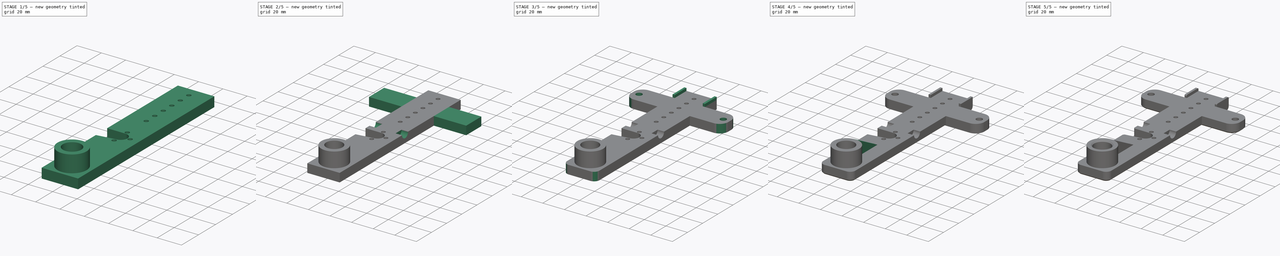
[diagram: build sequence overview — one tinted view per stage of 5, left to right]
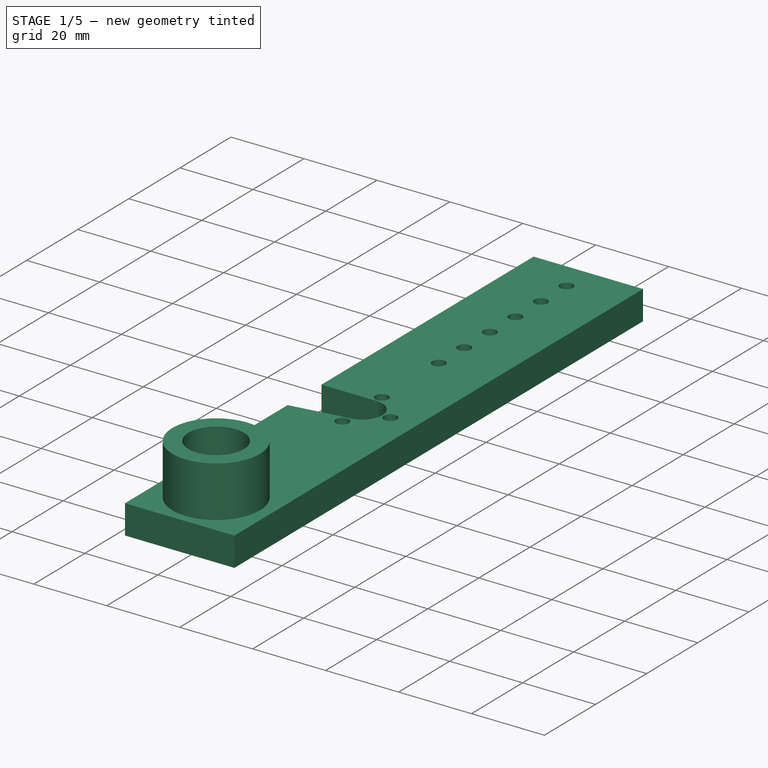
[diagram: stage 1 of 5 — iso view after this stage's code; geometry added in this stage tinted green]
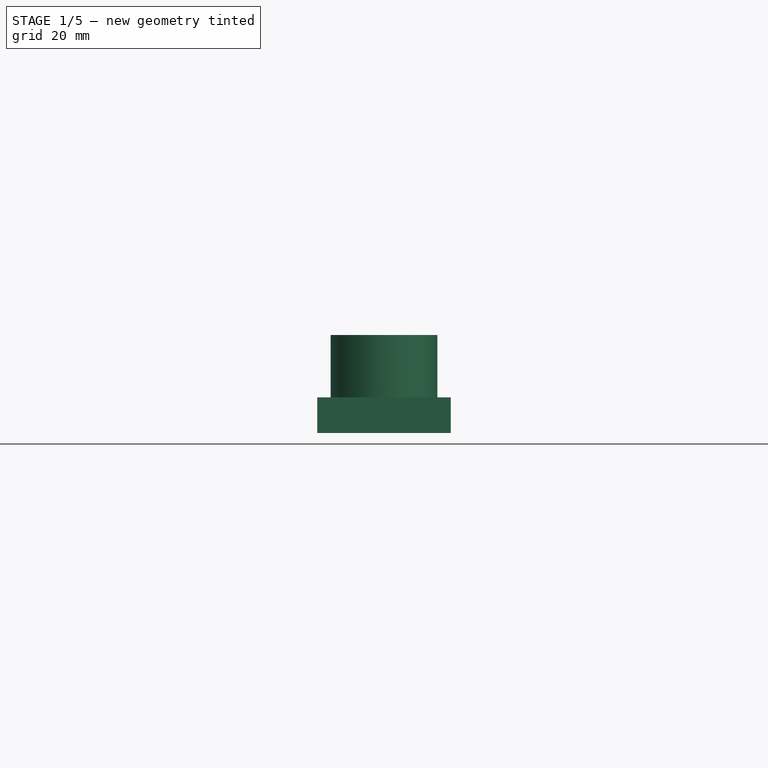
[diagram: stage 1 of 5 — front view after this stage's code; geometry added in this stage tinted green]
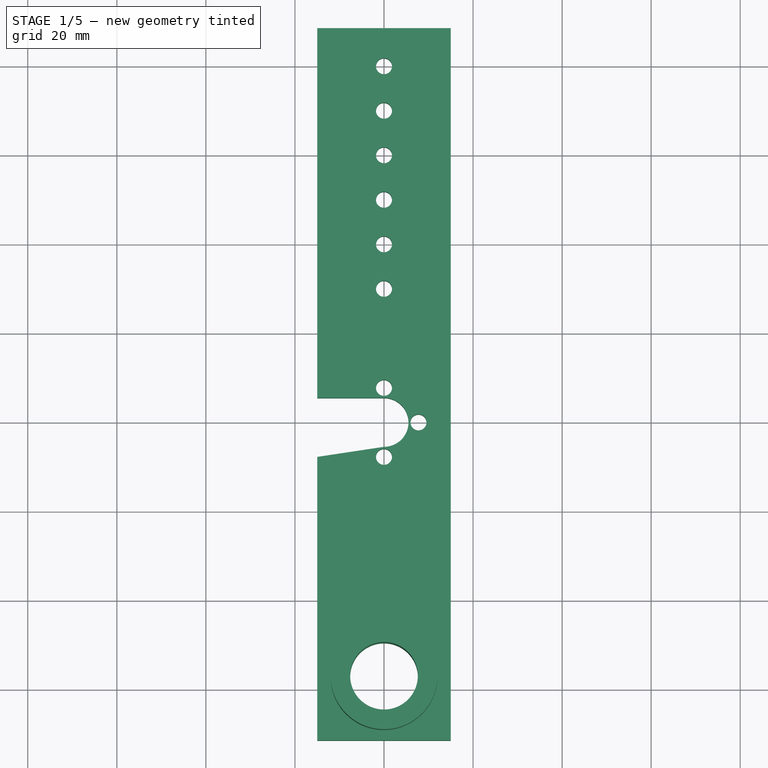
[diagram: stage 1 of 5 — top view after this stage's code; geometry added in this stage tinted green]
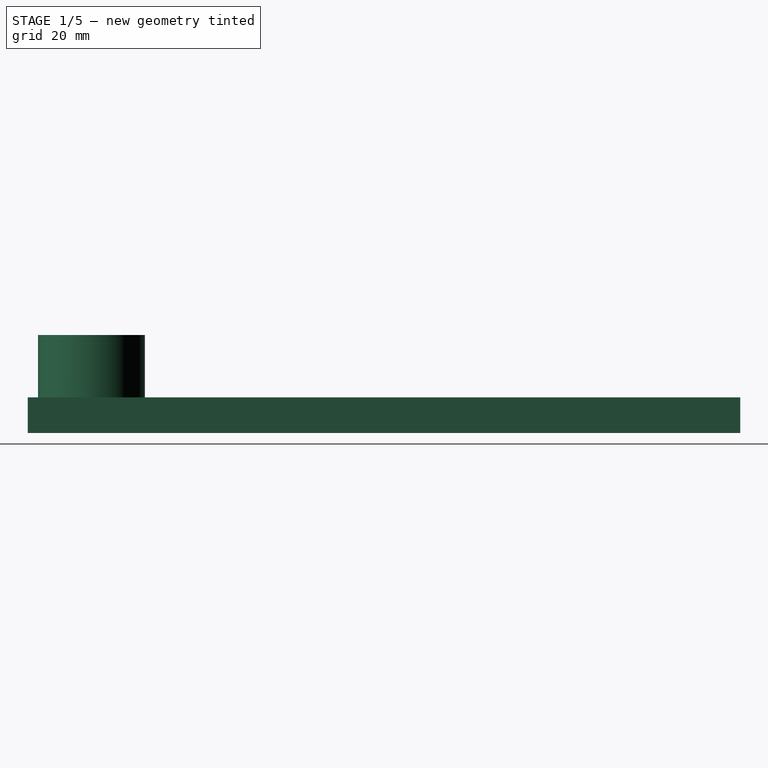
[diagram: stage 1 of 5 — right view after this stage's code; geometry added in this stage tinted green]
FCSTD DOCUMENT  (FreeCAD 0.16R6698 (Git))
Label: feeder
License: All rights reserved
LicenseURL: http://en.wikipedia.org/wiki/All_rights_reserved
objects: Sketcher::SketchObject×13, PartDesign::Pocket×7, PartDesign::Pad×6, PartDesign::Chamfer×5, PartDesign::Fillet×4
note: 48 computed .brp shape members not serialized (recipe doc carries the construction recipe); baked Part::Feature solids carry a one-line shape summary decoded from their .brp

FEATURE [Sketcher::SketchObject] Sketch
  sketch-geometry (4):
    g0: LineSegment StartX=-15 StartY=88.556 StartZ=0 EndX=15 EndY=88.556 EndZ=0
    g1: LineSegment StartX=15 StartY=88.556 StartZ=0 EndX=15 EndY=-71.444 EndZ=0
    g2: LineSegment StartX=15 StartY=-71.444 StartZ=0 EndX=-15 EndY=-71.444 EndZ=0
    g3: LineSegment StartX=-15 StartY=-71.444 StartZ=0 EndX=-15 EndY=88.556 EndZ=0
  constraints (11):
    c: Coincident(g0,g1)
    c: Coincident(g1,g2)
    c: Coincident(g2,g3)
    c: Coincident(g3,g0)
    c: Horizontal(g0)
    c: Horizontal(g2)
    c: Vertical(g1)
    c: Vertical(g3)
    c: DistanceX(g0,g0) = 30
    c: DistanceY(g3,g3) = 160
    c: Symmetric(g0,g0,g-2)
FEATURE [PartDesign::Pad] Pad
  Length = 8
  Length2 = 100
  Sketch = -> Sketch
  Type = 0
FEATURE [Sketcher::SketchObject] Sketch001
  Placement = pos=(0,0,8) rot=(0,0,1;0rad)
  Support = -> Pad [Face6]
  sketch-geometry (14):
    g0: ArcOfCircle CenterX=0 CenterY=0 CenterZ=0 NormalX=0 NormalY=0 NormalZ=1 Radius=5.5 StartAngle=4.71239 EndAngle=7.85398
    g1: Circle CenterX=0 CenterY=30 CenterZ=0 NormalX=0 NormalY=0 NormalZ=1 Radius=1.8
    g2: Circle CenterX=0 CenterY=40 CenterZ=0 NormalX=0 NormalY=0 NormalZ=1 Radius=1.8
    g3: Circle CenterX=0 CenterY=50 CenterZ=0 NormalX=0 NormalY=0 NormalZ=1 Radius=1.8
    g4: Circle CenterX=0 CenterY=60 CenterZ=0 NormalX=0 NormalY=0 NormalZ=1 Radius=1.8
    g5: Circle CenterX=0 CenterY=70 CenterZ=0 NormalX=0 NormalY=0 NormalZ=1 Radius=1.8
    g6: Circle CenterX=0 CenterY=7.75 CenterZ=0 NormalX=0 NormalY=0 NormalZ=1 Radius=1.8
    g7: Circle CenterX=0 CenterY=-7.75 CenterZ=0 NormalX=0 NormalY=0 NormalZ=1 Radius=1.8
    g8: Circle CenterX=7.75 CenterY=0 CenterZ=0 NormalX=0 NormalY=0 NormalZ=1 Radius=1.8
    g9: LineSegment StartX=-15.2309 StartY=5.5 StartZ=0 EndX=3e-12 EndY=5.5 EndZ=0
    g10: LineSegment StartX=2e-12 StartY=-5.5 StartZ=0 EndX=-15.2309 EndY=-7.79676 EndZ=0
    g11: LineSegment StartX=-15.2309 StartY=-7.79676 StartZ=0 EndX=-15.2309 EndY=5.5 EndZ=0
    g12: Circle [constr] CenterX=0 CenterY=-57.15 CenterZ=0 NormalX=0 NormalY=0 NormalZ=1 Radius=7.5
    g13: Circle CenterX=0 CenterY=80 CenterZ=0 NormalX=0 NormalY=0 NormalZ=1 Radius=1.8
  constraints (38):
    c: Coincident(g0,g-1)
    c: Radius(g0) = 5.5
    c: PointOnObject(g1,g-2)
    c: PointOnObject(g2,g-2)
    c: Radius(g4) = 1.8
    c: Equal(g4,g3)
    c: Equal(g4,g2)
    c: Equal(g4,g1)
    c: DistanceY(g-1,g1) = 30
    c: DistanceY(g1,g2) = 10
    c: DistanceY(g2,g3) = 10
    c: DistanceY(g3,g4) = 10
    c: PointOnObject(g5,g-2)
    c: Radius(g5) = 1.8
    c: DistanceY(g4,g5) = 10
    c: Radius(g8) = 1.8
    c: Equal(g8,g6)
    c: Equal(g8,g7)
    c: PointOnObject(g6,g-2)
    c: PointOnObject(g8,g-1)
    c: PointOnObject(g7,g-2)
    c: DistanceY(g-1,g6) = 7.75
    c: DistanceX(g-1,g8) = 7.75
    c: DistanceY(g7,g-1) = 7.75
    c: Coincident(g10,g11)
    c: Coincident(g11,g9)
    c: Horizontal(g9)
    c: Vertical(g11)
    c: PointOnObject(g0,g9)
    c: Coincident(g0,g9)
    c: Coincident(g0,g10)
    c: PointOnObject(g12,g-2)
    c: DistanceY(g12,g-1) = 57.15
    c: Distance(g10,g12) = 51.65
    c: Radius(g12) = 7.5
    c: PointOnObject(g13,g-2)
    c: Radius(g13) = 1.8
    c: DistanceY(g5,g13) = 10
FEATURE [PartDesign::Pocket] Pocket
  Length = 5
  Sketch = -> Sketch001
  Type = 1
FEATURE [Sketcher::SketchObject] Sketch002
  Placement = pos=(0,0,8) rot=(0,0,1;0rad)
  Support = -> Pocket [Face5]
  sketch-geometry (1):
    g0: Circle CenterX=0 CenterY=-57.15 CenterZ=0 NormalX=0 NormalY=0 NormalZ=1 Radius=12
  constraints (3):
    c: PointOnObject(g0,g-2)
    c: DistanceY(g0,g-1) = 57.15
    c: Radius(g0) = 12
FEATURE [PartDesign::Pad] Pad001
  Length = 14
  Length2 = 100
  Sketch = -> Sketch002
  Type = 0
FEATURE [Sketcher::SketchObject] Sketch003
  ExternalGeometry = -> [Pad001]
  Placement = pos=(0,0,22) rot=(0,0,1;0rad)
  Support = -> Pad001 [Face20]
  sketch-geometry (1):
    g0: Circle CenterX=0 CenterY=-57.15 CenterZ=0 NormalX=0 NormalY=0 NormalZ=1 Radius=7.5
  constraints (2):
    c: Coincident(g0,g-3)
    c: Radius(g0) = 7.5
FEATURE [PartDesign::Pocket] Pocket001
  Length = 5
  Sketch = -> Sketch003
  Type = 1
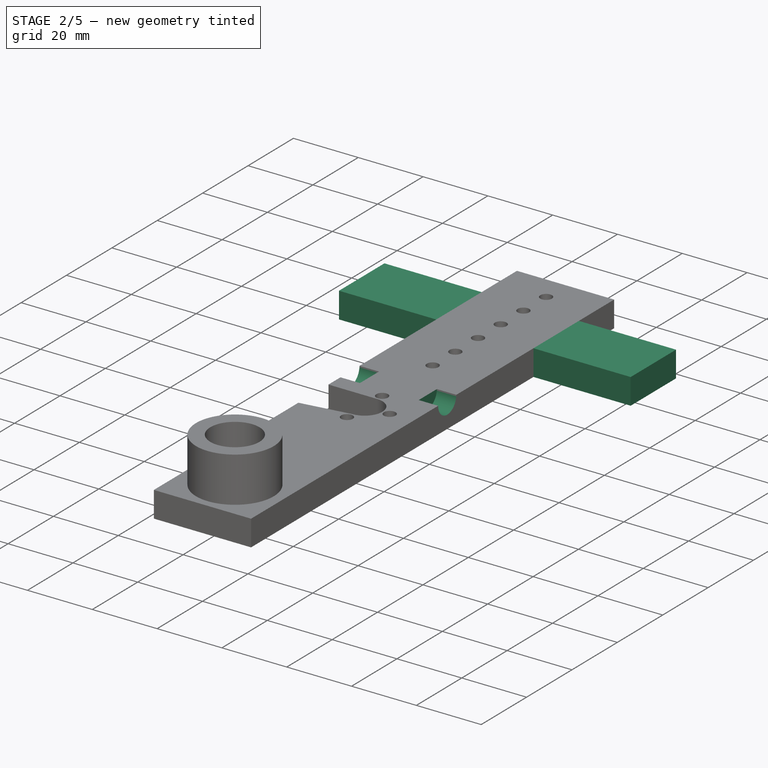
[diagram: stage 2 of 5 — iso view after this stage's code; geometry added in this stage tinted green]
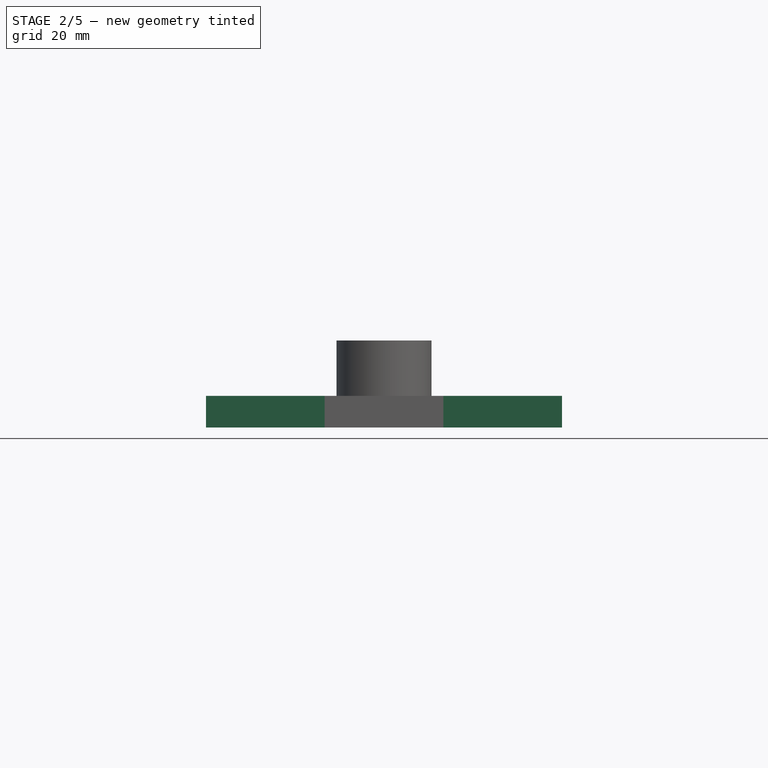
[diagram: stage 2 of 5 — front view after this stage's code; geometry added in this stage tinted green]
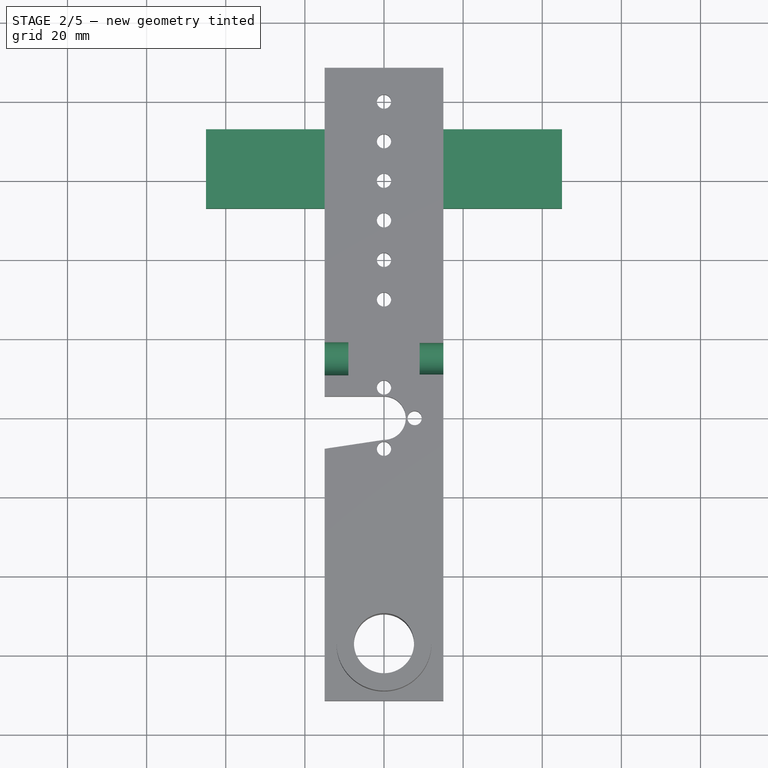
[diagram: stage 2 of 5 — top view after this stage's code; geometry added in this stage tinted green]
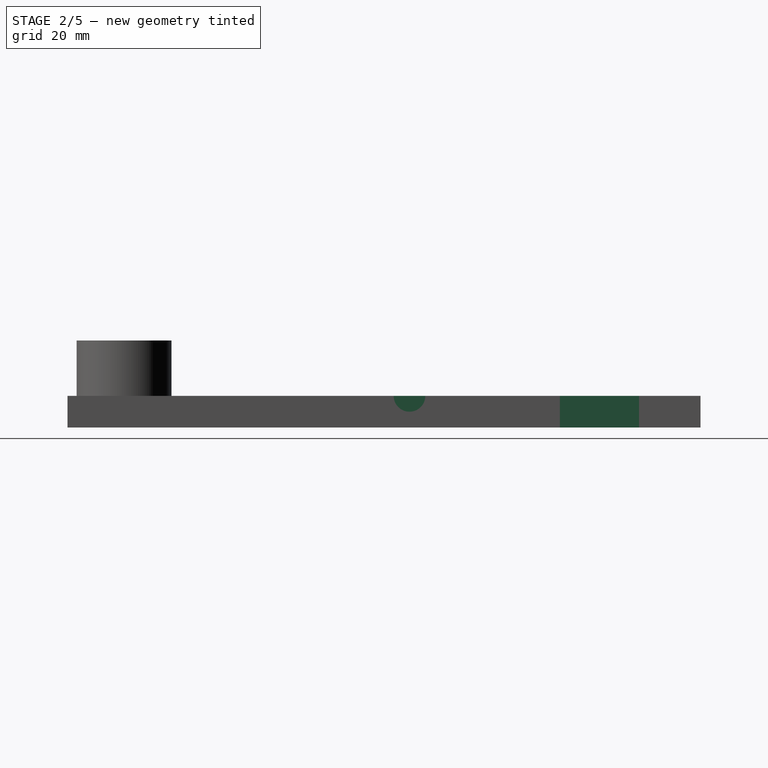
[diagram: stage 2 of 5 — right view after this stage's code; geometry added in this stage tinted green]
FEATURE [Sketcher::SketchObject] Sketch004
  Placement = pos=(-15,0,0) rot=(0.57735,-0.57735,-0.57735;2.0944rad)
  Support = -> Pocket001 [Face2]
  sketch-geometry (1):
    g0: Circle CenterX=-14.9881 CenterY=7.99701 CenterZ=0 NormalX=0 NormalY=0 NormalZ=1 Radius=4.18673
FEATURE [PartDesign::Pocket] Pocket002
  Length = 6
  Sketch = -> Sketch004
  Type = 0
FEATURE [Sketcher::SketchObject] Sketch005
  ExternalGeometry = -> [Pocket002]
  Placement = pos=(15,0,0) rot=(0.57735,0.57735,0.57735;2.0944rad)
  Support = -> Pocket002 [Face3]
  sketch-geometry (1):
    g0: Circle CenterX=15 CenterY=8 CenterZ=0 NormalX=0 NormalY=0 NormalZ=1 Radius=4
FEATURE [PartDesign::Pocket] Pocket003
  Length = 6
  Sketch = -> Sketch005
  Type = 0
FEATURE [Sketcher::SketchObject] Sketch006
  ExternalGeometry = -> [Pocket003]
  Placement = pos=(0,0,0) rot=(1,0,0;3.14159rad)
  Support = -> Pocket003 [Face4]
  sketch-geometry (2):
    g0: Circle CenterX=0 CenterY=-60 CenterZ=0 NormalX=0 NormalY=0 NormalZ=1 Radius=3.1
    g1: Circle CenterX=0 CenterY=-50 CenterZ=0 NormalX=0 NormalY=0 NormalZ=1 Radius=3.1
  constraints (4):
    c: PointOnObject(g0,g-2)
    c: Radius(g0) = 3.1
    c: PointOnObject(g1,g-2)
    c: Radius(g1) = 3.1
FEATURE [PartDesign::Pocket] Pocket004
  Length = 4
  Sketch = -> Sketch006
  Type = 0
FEATURE [Sketcher::SketchObject] Sketch007
  ExternalGeometry = -> [Pocket004]
  Placement = pos=(-15,0,0) rot=(0.57735,-0.57735,-0.57735;2.0944rad)
  Support = -> Pocket004 [Face2]
  sketch-geometry (5):
    g0: LineSegment StartX=-73 StartY=8 StartZ=0 EndX=-53 EndY=8 EndZ=0
    g1: LineSegment StartX=-53 StartY=8 StartZ=0 EndX=-53 EndY=0 EndZ=0
    g2: LineSegment StartX=-53 StartY=0 StartZ=0 EndX=-73 EndY=0 EndZ=0
    g3: LineSegment StartX=-73 StartY=0 StartZ=0 EndX=-73 EndY=8 EndZ=0
    g4: LineSegment [constr] StartX=-63 StartY=8.24856 StartZ=0 EndX=-63 EndY=-1 EndZ=0
  constraints (12):
    c: Coincident(g0,g1)
    c: Coincident(g1,g2)
    c: Coincident(g2,g3)
    c: Coincident(g3,g0)
    c: Horizontal(g0)
    c: Horizontal(g2)
    c: Vertical(g1)
    c: Vertical(g3)
    c: PointOnObject(g1,g-1)
    c: DistanceX(g0,g0) = 20
    c: Vertical(g4)
    c: Symmetric(g0,g0,g4)
FEATURE [PartDesign::Pad] Pad002
  Length = 30
  Length2 = 100
  Sketch = -> Sketch007
  Type = 0
FEATURE [Sketcher::SketchObject] Sketch008
  Placement = pos=(15,0,0) rot=(0.57735,0.57735,0.57735;2.0944rad)
  Support = -> Pad002 [Face6]
  sketch-geometry (4):
    g0: LineSegment StartX=53 StartY=8 StartZ=0 EndX=73 EndY=8 EndZ=0
    g1: LineSegment StartX=73 StartY=8 StartZ=0 EndX=73 EndY=0 EndZ=0
    g2: LineSegment StartX=73 StartY=0 StartZ=0 EndX=53 EndY=0 EndZ=0
    g3: LineSegment StartX=53 StartY=0 StartZ=0 EndX=53 EndY=8 EndZ=0
  constraints (9):
    c: Coincident(g0,g1)
    c: Coincident(g1,g2)
    c: Coincident(g2,g3)
    c: Coincident(g3,g0)
    c: Horizontal(g0)
    c: Horizontal(g2)
    c: Vertical(g1)
    c: Vertical(g3)
    c: PointOnObject(g1,g-1)
FEATURE [PartDesign::Pad] Pad003
  Length = 30
  Length2 = 100
  Sketch = -> Sketch008
  Type = 0
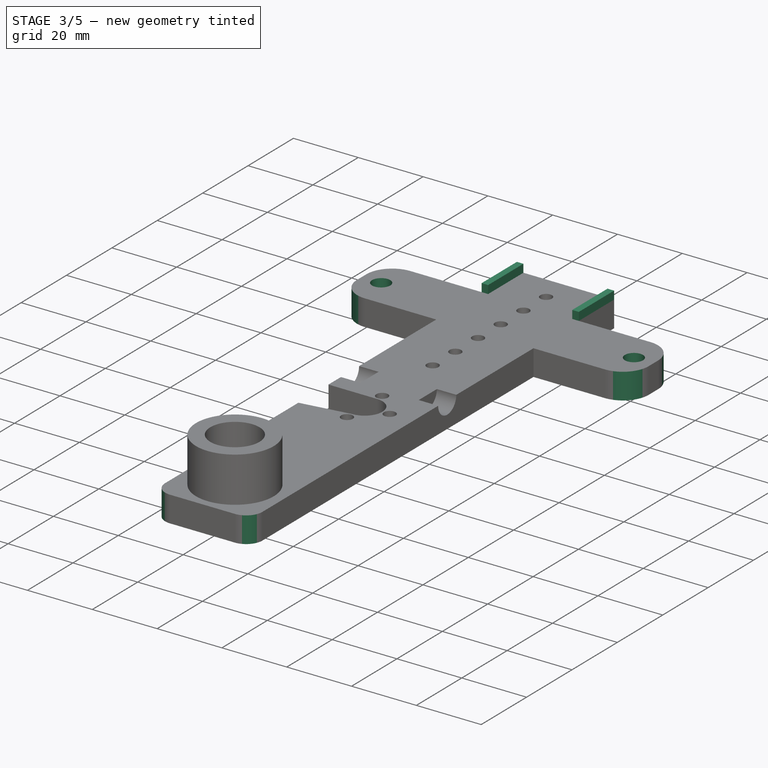
[diagram: stage 3 of 5 — iso view after this stage's code; geometry added in this stage tinted green]
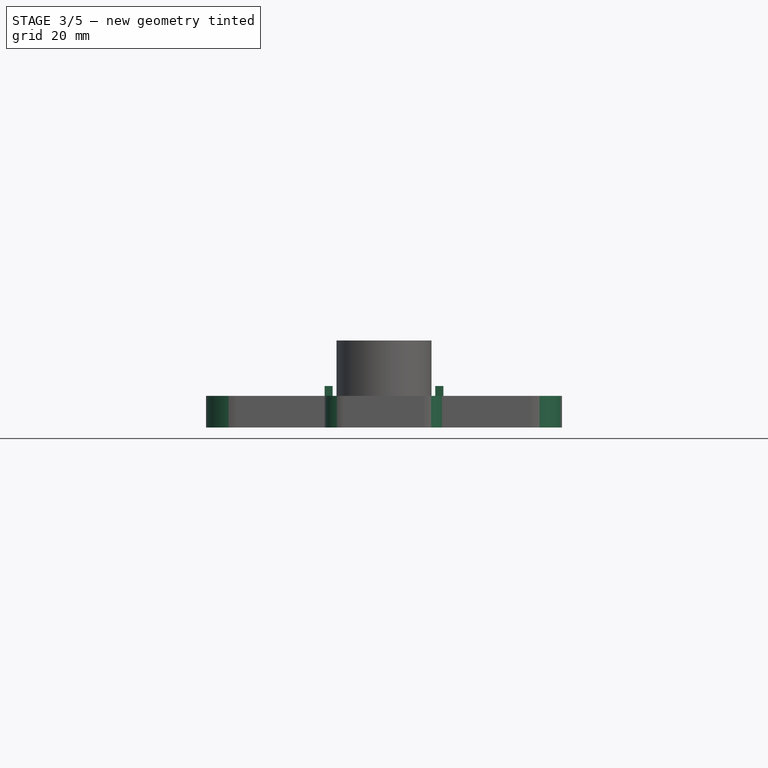
[diagram: stage 3 of 5 — front view after this stage's code; geometry added in this stage tinted green]
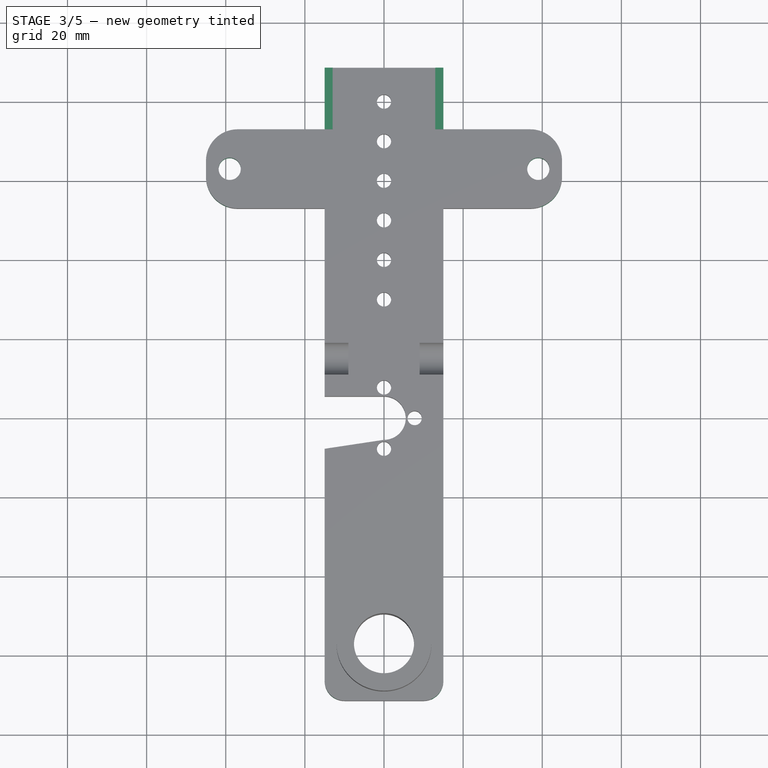
[diagram: stage 3 of 5 — top view after this stage's code; geometry added in this stage tinted green]
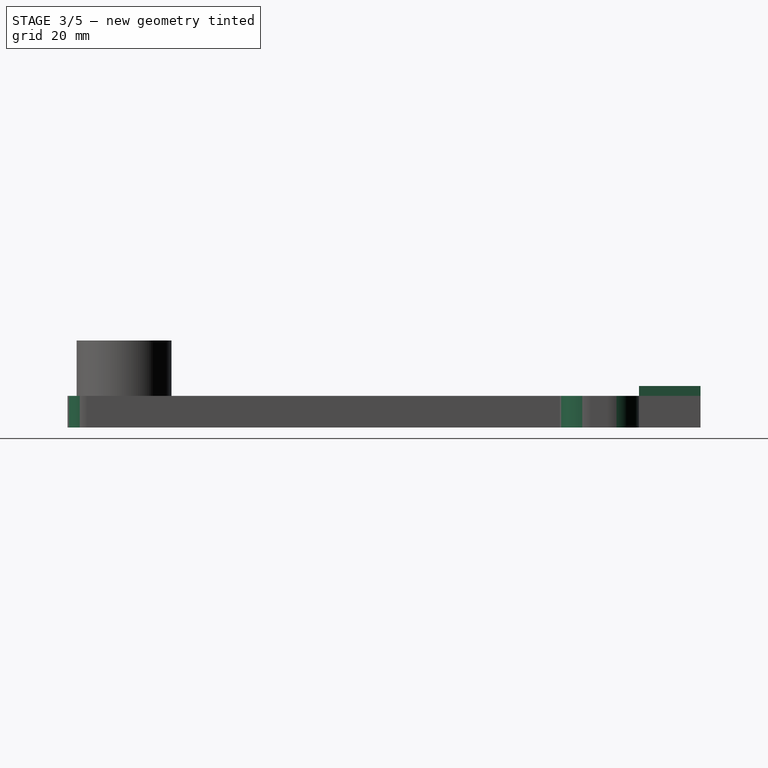
[diagram: stage 3 of 5 — right view after this stage's code; geometry added in this stage tinted green]
FEATURE [Sketcher::SketchObject] Sketch009
  ExternalGeometry = -> [Pad003]
  Placement = pos=(0,0,8) rot=(0,0,1;0rad)
  Support = -> Pad003 [Face38]
  sketch-geometry (2):
    g0: Circle CenterX=21 CenterY=63 CenterZ=0 NormalX=0 NormalY=0 NormalZ=1 Radius=2.8
    g1: Circle CenterX=3 CenterY=63 CenterZ=0 NormalX=0 NormalY=0 NormalZ=1 Radius=2.8
  constraints (4):
    c: Radius(g0) = 2.8
    c: Equal(g0,g1)
    c: DistanceX(g-7,g0) = 6
    c: DistanceX(g1,g-5) = 6
FEATURE [PartDesign::Pocket] Pocket005
  Length = 5
  Sketch = -> Sketch009
  Type = 1
FEATURE [Sketcher::SketchObject] Sketch011
  Placement = pos=(0,0,8) rot=(0,0,1;0rad)
  Support = -> Pocket005 [Face4]
  sketch-geometry (8):
    g0: LineSegment StartX=-15 StartY=88.5524 StartZ=0 EndX=-13 EndY=88.5524 EndZ=0
    g1: LineSegment StartX=-13 StartY=88.5524 StartZ=0 EndX=-13 EndY=73 EndZ=0
    g2: LineSegment StartX=-13 StartY=73 StartZ=0 EndX=-15 EndY=73 EndZ=0
    g3: LineSegment StartX=-15 StartY=73 StartZ=0 EndX=-15 EndY=88.5524 EndZ=0
    g4: LineSegment StartX=15 StartY=88.5546 StartZ=0 EndX=12.9537 EndY=88.5546 EndZ=0
    g5: LineSegment StartX=12.9537 StartY=88.5546 StartZ=0 EndX=12.9537 EndY=73 EndZ=0
    g6: LineSegment StartX=12.9537 StartY=73 StartZ=0 EndX=15 EndY=73 EndZ=0
    g7: LineSegment StartX=15 StartY=73 StartZ=0 EndX=15 EndY=88.5546 EndZ=0
  constraints (16):
    c: Coincident(g0,g1)
    c: Coincident(g1,g2)
    c: Coincident(g2,g3)
    c: Coincident(g3,g0)
    c: Horizontal(g0)
    c: Horizontal(g2)
    c: Vertical(g1)
    c: Vertical(g3)
    c: Coincident(g4,g5)
    c: Coincident(g5,g6)
    c: Coincident(g6,g7)
    c: Coincident(g7,g4)
    c: Horizontal(g4)
    c: Horizontal(g6)
    c: Vertical(g5)
    c: Vertical(g7)
FEATURE [PartDesign::Pad] Pad004
  Length = 2.5
  Length2 = 100
  Sketch = -> Sketch011
  Type = 0
FEATURE [PartDesign::Fillet] Fillet
  Base = -> Pad004 [Edge80,Edge35,Edge82,Edge83]
  Radius = 8
FEATURE [PartDesign::Fillet] Fillet001
  Base = -> Fillet [Edge77,Edge78]
  Radius = 5
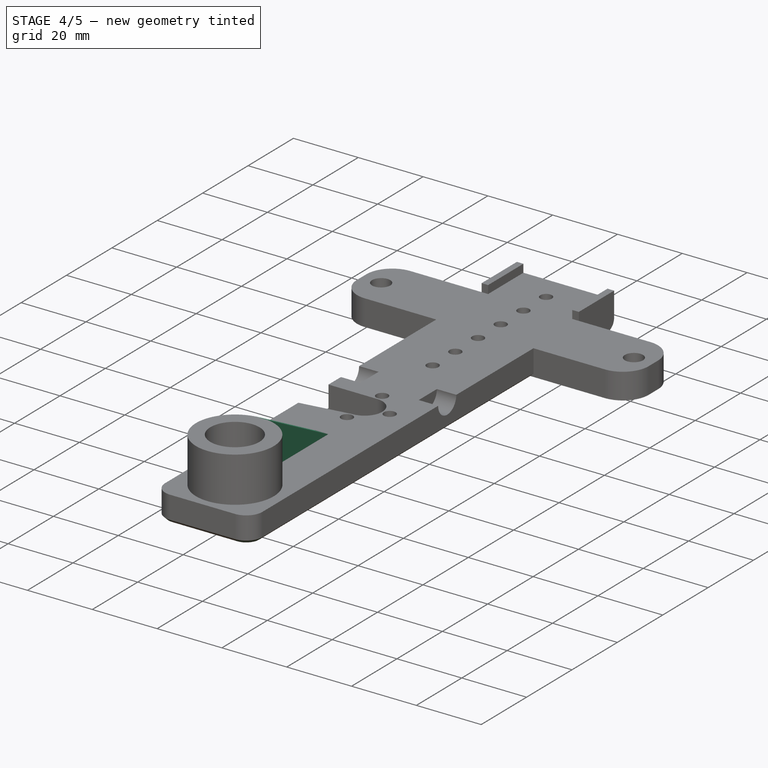
[diagram: stage 4 of 5 — iso view after this stage's code; geometry added in this stage tinted green]
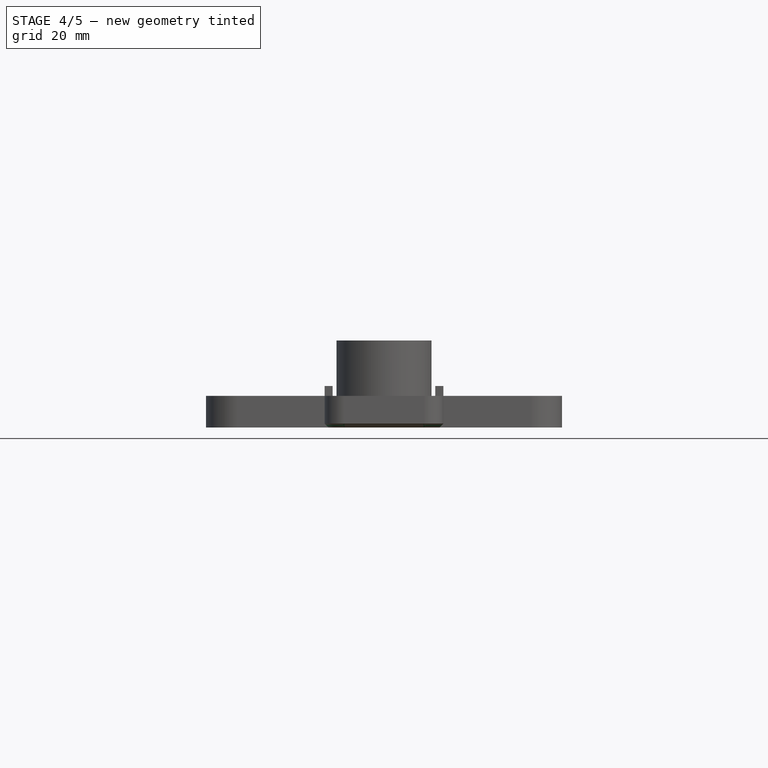
[diagram: stage 4 of 5 — front view after this stage's code; geometry added in this stage tinted green]
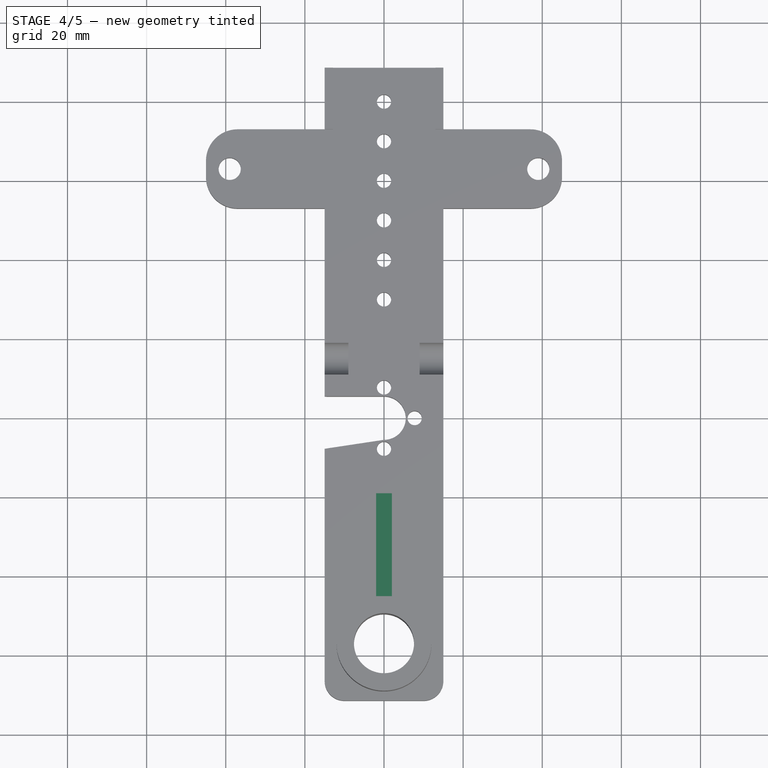
[diagram: stage 4 of 5 — top view after this stage's code; geometry added in this stage tinted green]
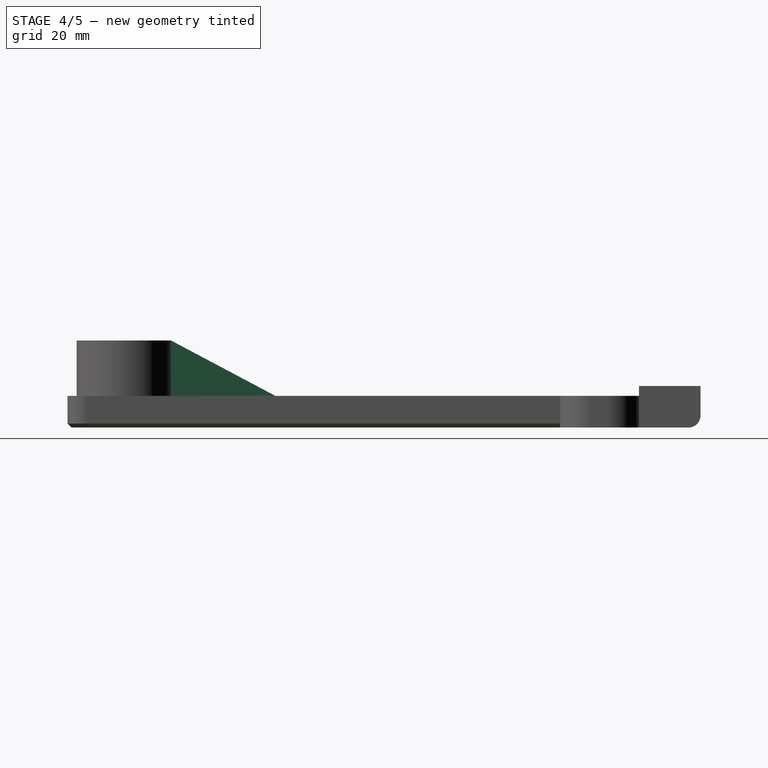
[diagram: stage 4 of 5 — right view after this stage's code; geometry added in this stage tinted green]
FEATURE [PartDesign::Fillet] Fillet002
  Base = -> Fillet001 [Edge22]
  Radius = 3
FEATURE [Sketcher::SketchObject] Sketch012
  Placement = pos=(0,0,8) rot=(0,0,1;0rad)
  Support = -> Fillet002 [Face38]
  sketch-geometry (4):
    g0: LineSegment StartX=-2 StartY=-19 StartZ=0 EndX=2 EndY=-19 EndZ=0
    g1: LineSegment StartX=2 StartY=-19 StartZ=0 EndX=2 EndY=-46.3344 EndZ=0
    g2: LineSegment StartX=2 StartY=-46.3344 StartZ=0 EndX=-2 EndY=-46.3344 EndZ=0
    g3: LineSegment StartX=-2 StartY=-46.3344 StartZ=0 EndX=-2 EndY=-19 EndZ=0
  constraints (8):
    c: Coincident(g0,g1)
    c: Coincident(g1,g2)
    c: Coincident(g2,g3)
    c: Coincident(g3,g0)
    c: Horizontal(g0)
    c: Horizontal(g2)
    c: Vertical(g1)
    c: Vertical(g3)
FEATURE [PartDesign::Pad] Pad005
  Length = 14
  Length2 = 100
  Sketch = -> Sketch012
  Type = 0
FEATURE [Sketcher::SketchObject] Sketch013
  Placement = pos=(-2,0,0) rot=(0.57735,-0.57735,-0.57735;2.0944rad)
  Support = -> Pad005 [Face56]
  sketch-geometry (3):
    g0: LineSegment StartX=18.4687 StartY=22.5735 StartZ=0 EndX=45.2787 EndY=22 EndZ=0
    g1: LineSegment StartX=45.2787 StartY=22 StartZ=0 EndX=19.0026 EndY=8.05317 EndZ=0
    g2: LineSegment StartX=19.0026 StartY=8.05317 StartZ=0 EndX=18.4687 EndY=22.5735 EndZ=0
  constraints (3):
    c: Coincident(g0,g1)
    c: Coincident(g1,g2)
    c: Coincident(g2,g0)
FEATURE [PartDesign::Pocket] Pocket006
  Length = 5
  Sketch = -> Sketch013
  Type = 1
FEATURE [PartDesign::Chamfer] Chamfer
  Base = -> Pocket006 [Edge17]
  Size = 1
FEATURE [PartDesign::Chamfer] Chamfer001
  Base = -> Chamfer [Edge7]
  Size = 1
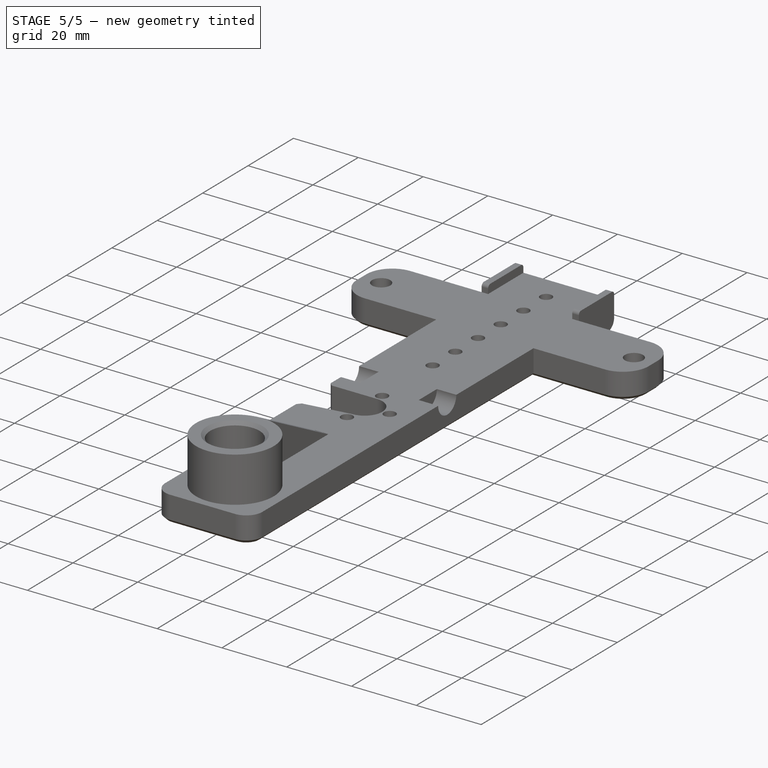
[diagram: stage 5 of 5 — iso view after this stage's code; geometry added in this stage tinted green]
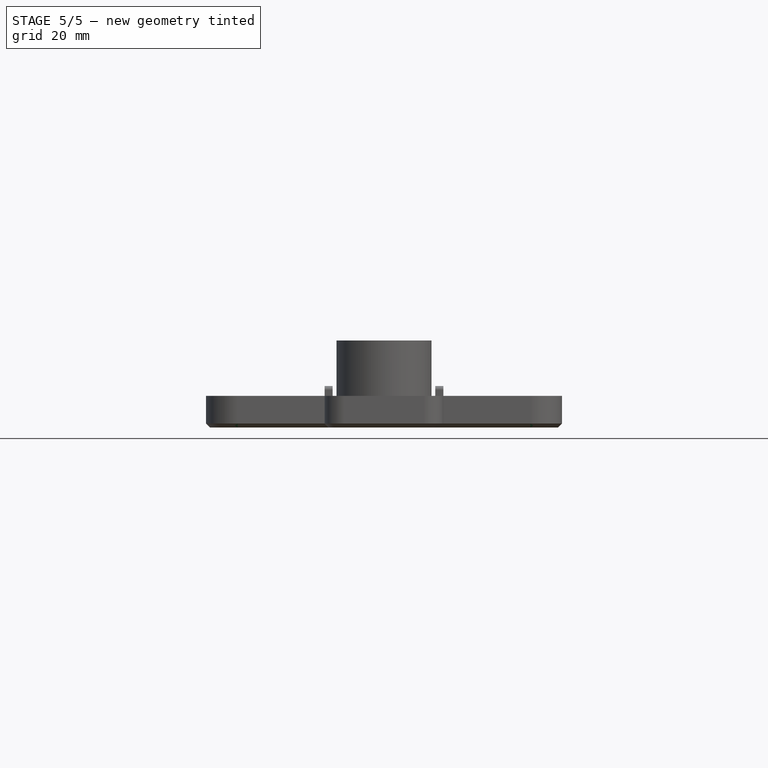
[diagram: stage 5 of 5 — front view after this stage's code; geometry added in this stage tinted green]
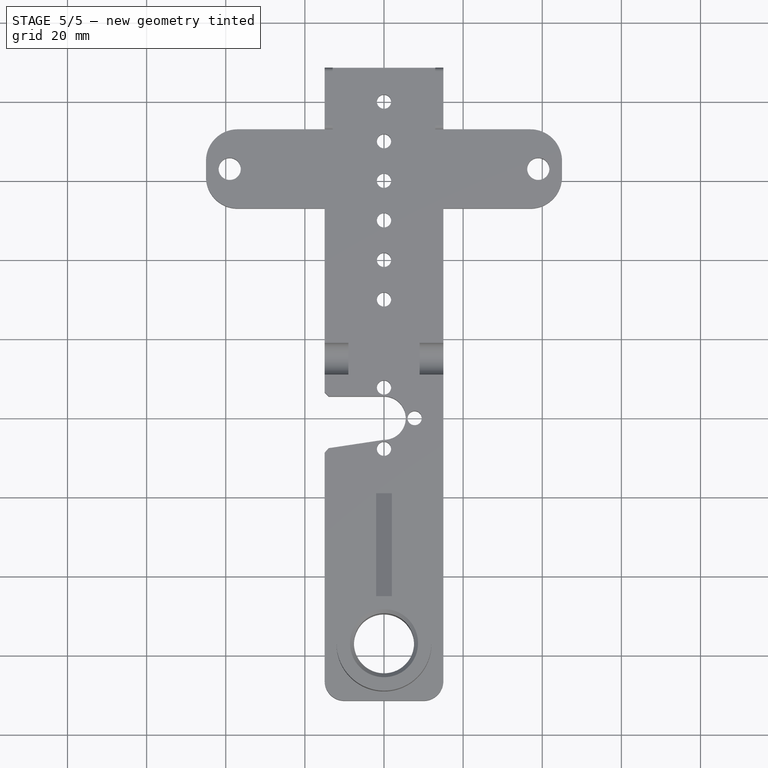
[diagram: stage 5 of 5 — top view after this stage's code; geometry added in this stage tinted green]
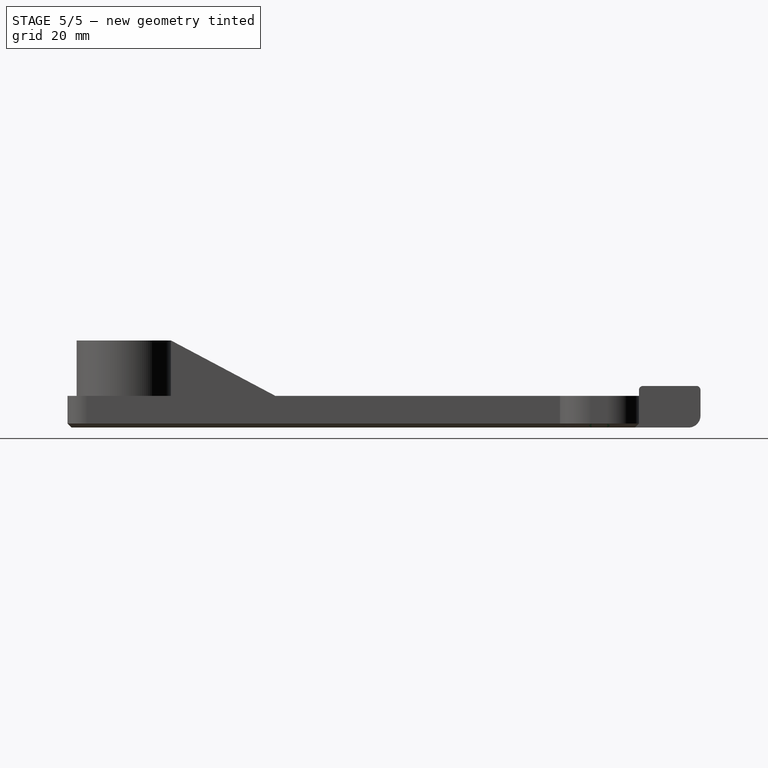
[diagram: stage 5 of 5 — right view after this stage's code; geometry added in this stage tinted green]
FEATURE [PartDesign::Chamfer] Chamfer002
  Base = -> Chamfer001 [Edge6,Edge19]
  Size = 1
FEATURE [PartDesign::Fillet] Fillet003
  Base = -> Chamfer002 [Edge181,Edge172,Edge171,Edge180]
  Radius = 1
FEATURE [PartDesign::Chamfer] Chamfer003
  Base = -> Fillet003 [Edge174,Edge63]
  Size = 1
FEATURE [PartDesign::Chamfer] Chamfer004
  Base = -> Chamfer003 [Edge48,Edge56]
  Size = 1
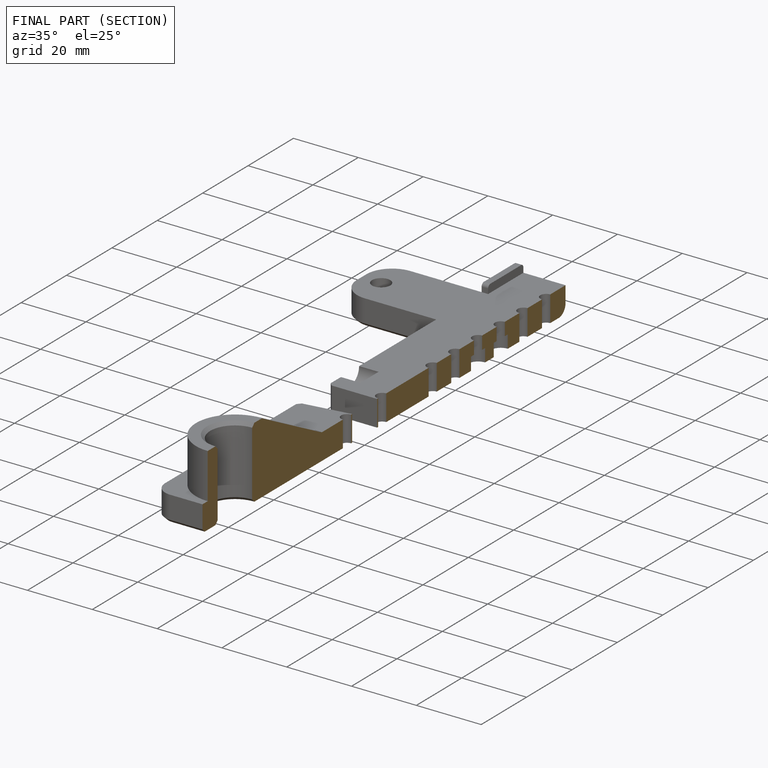
[diagram: finished part — half-section view (interior)]
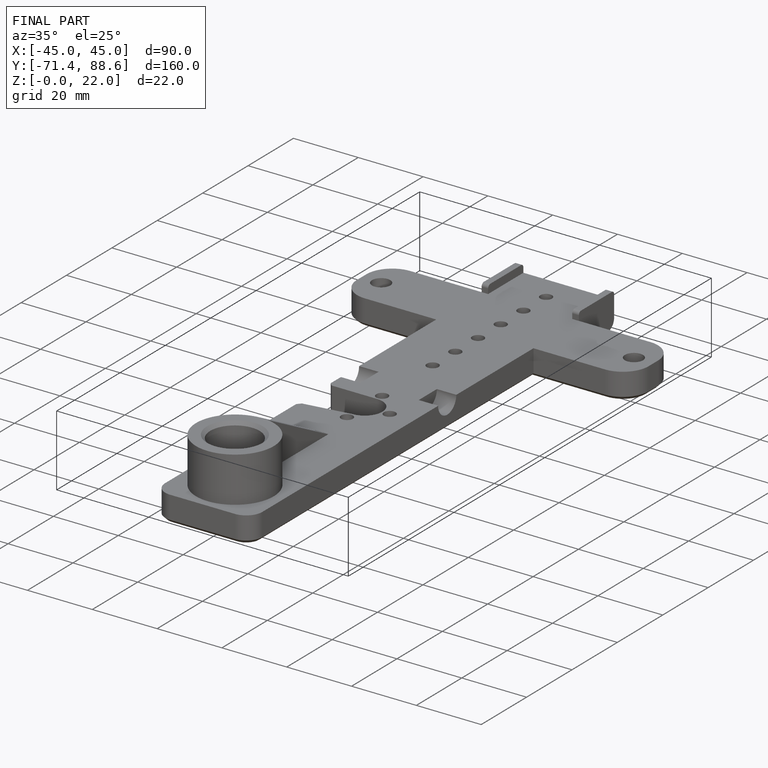
[diagram: finished part — iso view with bounding-box wireframe]
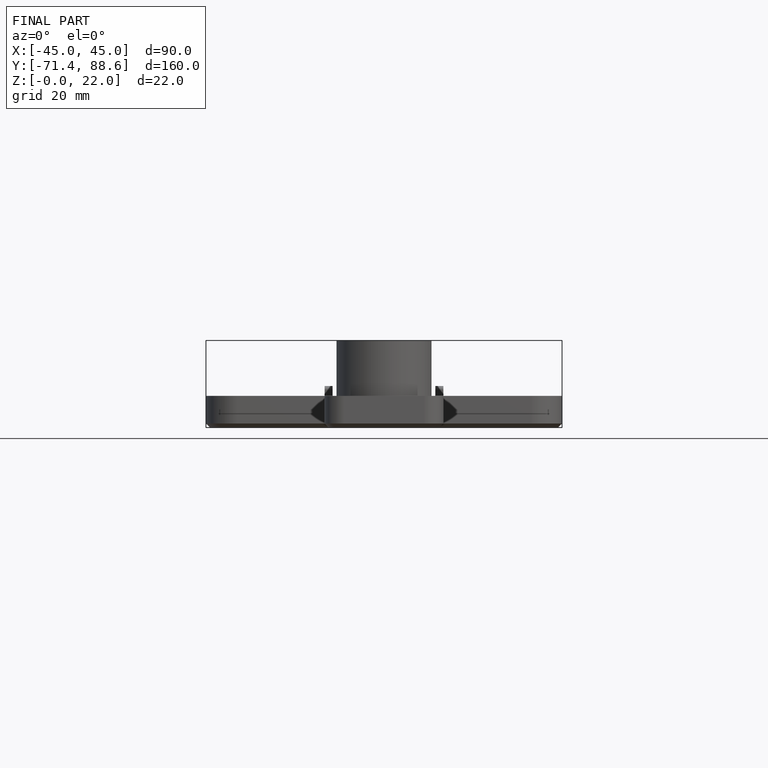
[diagram: finished part — front view with bounding-box wireframe]
